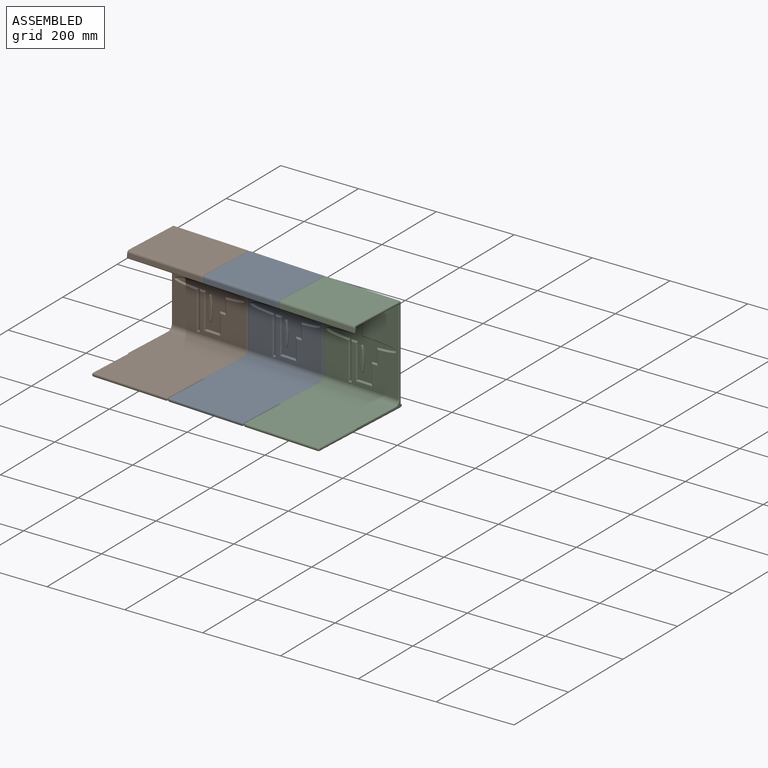
[diagram: assembled view]
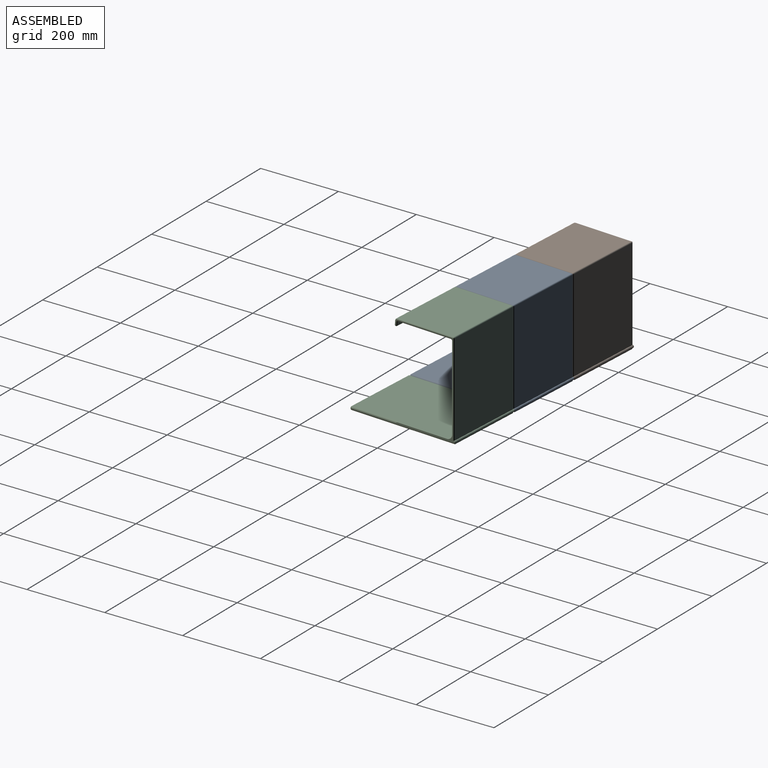
[diagram: assembled view, second angle]
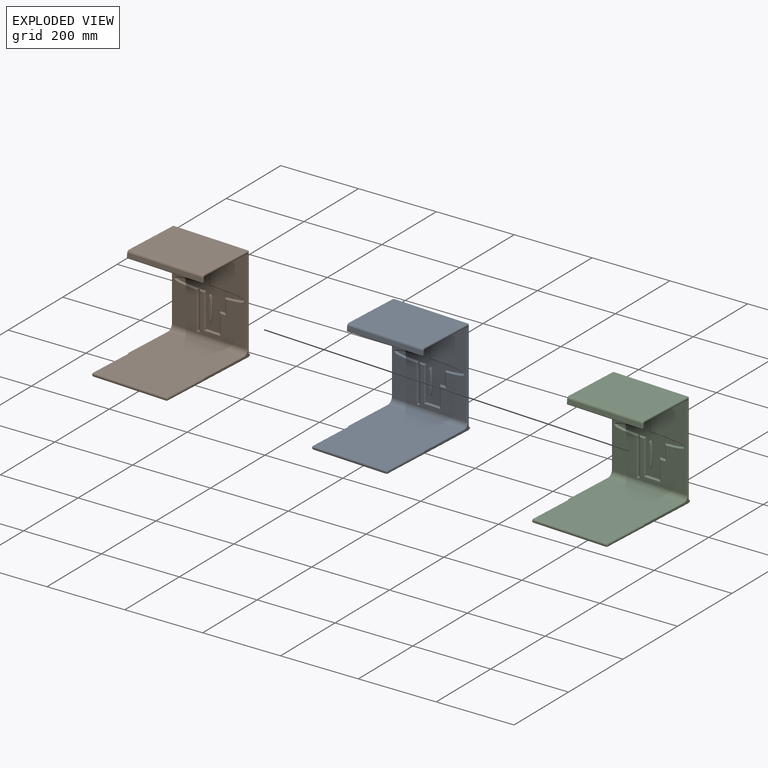
[diagram: exploded view]
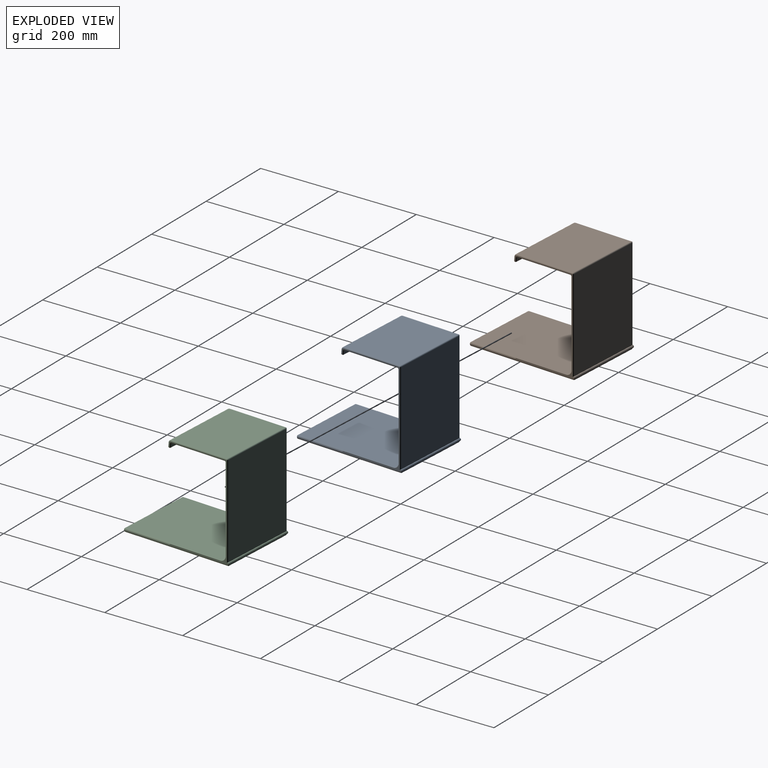
[diagram: exploded view, second angle]
ASSEMBLY  parts=3 mates=2
PART A: 115 faces, bbox 253.7x285.6x252.5 mm
  f0: cylinder r=3.17mm len=201.93mm, axis (-1,0,0), area 46.6mm2, adj f7,f46,f51,f102,f108,f111
  f1: plane 243.59x160.01mm, normal (1,0,0), area 1376.9mm2, adj f14,f17,f19,f22,f24,f29,f35,f37
  f2: plane 243.59x160.23mm, normal (-1,0,0), area 1380.2mm2, adj f12,f13,f16,f18,f21,f23,f27,f28
  f3: plane 198.12x149.86mm, normal (0,0,1), area 29690.3mm2, adj f9,f31,f36,f40
  f4: cylinder r=3.17mm len=201.93mm, axis (-1,0,0), area 2015.8mm2, adj f5,f32,f37,f48,f53,f98
  f5: plane 237.49x198.12mm, normal (0,1,0), area 47051.5mm2, adj f4,f32,f36,f37
  f6: plane 198.12x141.18mm, normal (0,0,-1), area 27971.1mm2, adj f15,f18,f19,f20
  f7: plane 201.93x133.47mm, normal (0,0,1), area 26927.5mm2, adj f0,f41,f42,f43,f45,f50
  f8: plane 221.48x201.16mm, normal (0,-1,0), area 31762.4mm2, adj f13,f14,f15,f42,f75,f76,f77,f78
  f9: cylinder r=6.35mm len=198.12mm, axis (-1,0,0), area 1866.4mm2, adj f3,f11,f28,f38
  f10: plane 198.12x7.8mm, normal (0,1,-0.09), area 1551.8mm2, adj f20,f23,f24,f25
  f11: plane 198.12x10.12mm, normal (0,-1,0.09), area 2012.9mm2, adj f9,f27,f30,f35
  f12: plane 200.66x1.27mm, normal (0,-0.09,-1), area 254.8mm2, adj f2,f25,f29,f30
  f13: cylinder r=2.54mm len=218.44mm, axis (0,0,-1), area 871.5mm2, adj f2,f8,f16,f41
  f14: cylinder r=2.54mm len=218.44mm, axis (0,0,1), area 871.5mm2, adj f1,f8,f17,f43
  f15: cylinder r=2.54mm len=198.12mm, axis (1,0,0), area 790.5mm2, adj f6,f8,f16,f17
  f16: torus R=5.08mm, axis (1,0,0), area 21.7mm2, adj f2,f13,f15,f18
  f17: torus R=5.08mm, axis (1,0,0), area 21.7mm2, adj f1,f14,f15,f19
  f18: cylinder r=2.54mm len=141.18mm, axis (0,1,0), area 563.3mm2, adj f2,f6,f16,f21
  f19: cylinder r=2.54mm len=141.18mm, axis (0,-1,0), area 563.3mm2, adj f1,f6,f17,f22
  f20: cylinder r=2.54mm len=198.12mm, axis (-1,0,0), area 746.5mm2, adj f6,f10,f21,f22
  f21: torus R=5.08mm, axis (1,0,0), area 20.5mm2, adj f2,f18,f20,f23
  f22: torus R=5.08mm, axis (1,0,0), area 20.5mm2, adj f1,f19,f20,f24
  f23: cylinder r=2.54mm len=10.55mm, axis (0,-0.09,-1), area 36.3mm2, adj f2,f10,f21,f25
  f24: cylinder r=2.54mm len=8.02mm, axis (0,0.09,1), area 31.3mm2, adj f1,f10,f22,f26
  f25: cylinder r=2.54mm len=200.66mm, axis (1,0,0), area 795.5mm2, adj f10,f12,f23,f26
  f26: sphere r=2.54mm, area 13.8mm2, adj f24,f25,f29
  f27: cylinder r=2.54mm len=12.87mm, axis (0,0.09,1), area 45.6mm2, adj f2,f11,f28,f30
  f28: torus R=3.81mm, axis (1,0,0), area 32.1mm2, adj f2,f9,f27,f31
  f29: cylinder r=2.54mm len=2.64mm, axis (0,-1,0.09), area 5.1mm2, adj f1,f12,f26,f33
  f30: cylinder r=2.54mm len=200.66mm, axis (-1,0,0), area 795.5mm2, adj f11,f12,f27,f33
  f31: cylinder r=2.54mm len=149.86mm, axis (0,-1,0), area 597.9mm2, adj f2,f3,f28,f34
  f32: cylinder r=2.54mm len=240.67mm, axis (0,0,1), area 950.7mm2, adj f2,f4,f5,f34,f48
  f33: sphere r=2.54mm, area 13.8mm2, adj f29,f30,f35
  f34: sphere r=2.54mm, area 6.5mm2, adj f31,f32,f36
  f35: cylinder r=2.54mm len=10.34mm, axis (0,-0.09,-1), area 40.5mm2, adj f1,f11,f33,f38
  f36: cylinder r=2.54mm len=198.12mm, axis (-1,0,0), area 790.5mm2, adj f3,f5,f34,f39
  f37: cylinder r=2.54mm len=240.67mm, axis (0,0,-1), area 950.7mm2, adj f1,f4,f5,f39,f53
  f38: torus R=3.81mm, axis (1,0,0), area 32.1mm2, adj f1,f9,f35,f40
  f39: sphere r=2.54mm, area 6.5mm2, adj f36,f37,f40
  f40: cylinder r=2.54mm len=149.86mm, axis (0,1,0), area 597.9mm2, adj f1,f3,f38,f39
  f41: torus R=15.24mm, axis (0,0,1), area 46.3mm2, adj f7,f13,f42,f44
  f42: cylinder r=12.7mm len=198.12mm, axis (-1,0,0), area 3952.3mm2, adj f7,f8,f41,f43
  f43: torus R=15.24mm, axis (0,0,1), area 46.3mm2, adj f7,f14,f42,f49
  f44: bspline ~15.12x13.34mm, area 8.5mm2, adj f2,f41,f45
  f45: plane 133.47x0.64mm, normal (-0.71,0,0.71), area 119.9mm2, adj f2,f7,f44,f46
  f46: cone r=3.17mm half-angle=45deg, axis (1,0,0), area 8.9mm2, adj f0,f2,f45,f47,f97,f105
  f47: plane 152.4x1.01mm, normal (-0.71,0,-0.71), area 217mm2, adj f2,f46,f48,f98,f105
  f48: cone r=3.17mm half-angle=45deg, axis (1,0,0), area 10.4mm2, adj f2,f4,f32,f47
  f49: bspline ~15.12x13.34mm, area 8.5mm2, adj f1,f43,f50
  f50: plane 133.47x0.64mm, normal (0.71,0,0.71), area 119.9mm2, adj f1,f7,f49,f51
  f51: cone r=2.54mm half-angle=45deg, axis (-1,0,0), area 8.9mm2, adj f0,f1,f50,f52,f99,f103
  f52: plane 152.4x1.01mm, normal (0.71,0,-0.71), area 217mm2, adj f1,f51,f53,f98,f103
  f53: cone r=2.54mm half-angle=45deg, axis (-1,0,0), area 10.4mm2, adj f1,f4,f37,f52
  f54: plane 95.85x2.54mm, normal (1,0,0), area 243.5mm2, adj f55,f72,f73,f87
  f55: extruded ~59.7x16mm, area 310mm2, adj f54,f56,f73,f85
  f56: plane 95.95x2.54mm, normal (1,0,0), area 243.7mm2, adj f55,f57,f73,f83
  f57: plane 3.06x2.54mm, normal (0,0,1), area 7.8mm2, adj f56,f58,f73,f81
  f58: plane 95.85x2.54mm, normal (-1,0,0), area 243.5mm2, adj f57,f59,f73,f79
  f59: extruded ~16.8x2.54mm, area 42.7mm2, adj f58,f60,f73,f77
  f60: plane 88.07x2.54mm, normal (1,0,0), area 223.7mm2, adj f59,f61,f73,f75
  f61: plane 38.34x2.54mm, normal (0,0,1), area 97.4mm2, adj f60,f62,f73,f76
  f62: plane 51.89x2.54mm, normal (-1,0,0), area 131.8mm2, adj f61,f63,f73,f78
  f63: plane 14.43x2.54mm, normal (0,0,1), area 36.7mm2, adj f62,f64,f73,f80
  f64: plane 37.02x2.54mm, normal (-1,0,0), area 94mm2, adj f63,f65,f73,f82
  f65: extruded ~91.25x16.14mm, area 366.1mm2, adj f64,f66,f73,f84
  f66: plane 85.1x2.54mm, normal (-1,0,0), area 216.2mm2, adj f65,f67,f73,f86
  f67: plane 23.41x2.54mm, normal (0,0,-1), area 59.5mm2, adj f66,f68,f73,f88
  f68: plane 85.39x2.54mm, normal (1,0,0), area 216.9mm2, adj f67,f69,f73,f90
  f69: extruded ~5.09x2.54mm, area 12.9mm2, adj f68,f70,f73,f92
  f70: plane 95.75x2.54mm, normal (-1,0,0), area 243.2mm2, adj f69,f72,f73,f91
  f71: extruded ~64.7x11.72mm, area 343.4mm2, adj f73,f93,f94,f95,f96
  f72: plane 3.06x2.54mm, normal (0,0,-1), area 7.8mm2, adj f54,f70,f73,f89
  f73: plane 207.79x182.52mm, normal (0,-1,0), area 8337.1mm2, adj f54,f55,f56,f57,f58,f59,f60,f61
  f74: plane 57.34x6.64mm, normal (0,-1,0), area 274.2mm2, adj f94,f95
  f75: plane 90.62x2.54mm, normal (0.71,-0.71,0), area 316.4mm2, adj f8,f60,f76,f77
  f76: plane 43.42x2.54mm, normal (0,-0.71,0.71), area 146.9mm2, adj f8,f61,f75,f78
  f77: bspline ~18.56x2.93mm, area 51.2mm2, adj f8,f59,f75,f79
  f78: plane 54.43x2.54mm, normal (-0.71,-0.71,0), area 186.4mm2, adj f8,f62,f76,f80
  f79: plane 98.39x2.54mm, normal (-0.71,-0.71,0), area 344.2mm2, adj f8,f58,f77,f81
  f80: plane 16.97x2.54mm, normal (0,-0.71,0.71), area 51.8mm2, adj f8,f63,f78,f82
  f81: plane 8.14x2.54mm, normal (0,-0.71,0.71), area 20.1mm2, adj f8,f57,f79,f83
  f82: plane 39.57x2.54mm, normal (-0.71,-0.71,0), area 133.2mm2, adj f8,f64,f80,f84
  f83: plane 98.49x2.54mm, normal (0.71,-0.71,0), area 344.8mm2, adj f8,f56,f81,f85
  f84: bspline ~101.5x21.56mm, area 522.7mm2, adj f8,f65,f82,f86
  f85: bspline ~62.1x21.08mm, area 443.5mm2, adj f8,f55,f83,f87
  f86: plane 87.65x2.54mm, normal (-0.71,-0.71,0), area 305.7mm2, adj f8,f66,f84,f88
  f87: plane 98.39x2.54mm, normal (0.71,-0.71,0), area 344.4mm2, adj f8,f54,f85,f89
  f88: plane 28.49x2.54mm, normal (0,-0.71,-0.71), area 93.2mm2, adj f8,f67,f86,f90
  f89: plane 8.14x2.54mm, normal (0,-0.71,-0.71), area 20.1mm2, adj f8,f72,f87,f91
  f90: plane 87.93x2.54mm, normal (0.71,-0.71,0), area 306.8mm2, adj f8,f68,f88,f92
  f91: plane 98.29x2.54mm, normal (-0.71,-0.71,0), area 343.8mm2, adj f8,f70,f89,f92
  f92: bspline ~5.68x2.69mm, area 9.1mm2, adj f69,f90,f91
  f93: bspline ~3.68x3.26mm, area 8.6mm2, adj f71,f94,f95
  f94: bspline ~62.9x6.67mm, area 242.2mm2, adj f71,f74,f93,f96
  f95: bspline ~62.46x6.45mm, area 242.2mm2, adj f71,f74,f93,f96
  f96: bspline ~3.68x3.25mm, area 8.6mm2, adj f71,f94,f95
  f97: plane 120.65x1.27mm, normal (-1,0,0), area 152.5mm2, adj f46,f105,f110,f111
  f98: plane 201.93x2.54mm, normal (0,1,0), area 506.9mm2, adj f4,f47,f52,f100,f103,f105
  f99: plane 120.65x1.27mm, normal (1,0,0), area 152.5mm2, adj f51,f103,f108,f109
  f100: plane 275.59x194.31mm, normal (0,0,-1), area 53549.9mm2, adj f98,f103,f104,f105
  f101: plane 194.31x1.27mm, normal (0,-1,0), area 246.3mm2, adj f104,f109,f110,f114
  f102: plane 194.31x123.06mm, normal (0,0,1), area 23912.4mm2, adj f0,f108,f111,f114
  f103: cylinder r=3.81mm len=275.59mm, axis (0,-1,0), area 1388.5mm2, adj f51,f52,f98,f99,f100,f106
  f104: cylinder r=3.81mm len=194.31mm, axis (-1,0,0), area 1162.9mm2, adj f100,f101,f106,f107
  f105: cylinder r=3.81mm len=275.59mm, axis (0,1,0), area 1388.5mm2, adj f46,f47,f97,f98,f100,f107
  f106: sphere r=3.81mm, area 14.5mm2, adj f103,f104,f109
  f107: sphere r=3.81mm, area 14.7mm2, adj f104,f105,f110
  f108: cylinder r=3.81mm len=123.06mm, axis (0,1,0), area 727.6mm2, adj f0,f99,f102,f112
  f109: cylinder r=3.81mm len=3.81mm, axis (0,0,1), area 7.6mm2, adj f99,f101,f106,f112
  f110: cylinder r=3.81mm len=3.81mm, axis (0,0,1), area 7.6mm2, adj f97,f101,f107,f113
  f111: cylinder r=3.81mm len=123.06mm, axis (0,1,0), area 727.6mm2, adj f0,f97,f102,f113
  f112: sphere r=3.81mm, area 22.8mm2, adj f108,f109,f114
  f113: sphere r=3.81mm, area 14.5mm2, adj f110,f111,f114
  f114: cylinder r=3.81mm len=194.31mm, axis (-1,0,0), area 1162.9mm2, adj f101,f102,f112,f113
PART B: same geometry as A
PART C: same geometry as A
PLACE A rot(axis=(0,0,-1),3.2deg) t=(703.98,-114.53,365.64)mm
PLACE B rot(axis=(0,0,-1),3.2deg) t=(501.09,-103.32,365.64)mm
PLACE C rot(axis=(0,0,-1),3.2deg) t=(906.87,-125.75,365.64)mm
MATE fastened B.f4 <-> A.f4  axis (1,-0.06,0) through (708.06,-40.76,266.24)mm
MATE fastened A.f4 <-> C.f4  axis (1,-0.06,0) through (910.95,-51.98,266.24)mm
